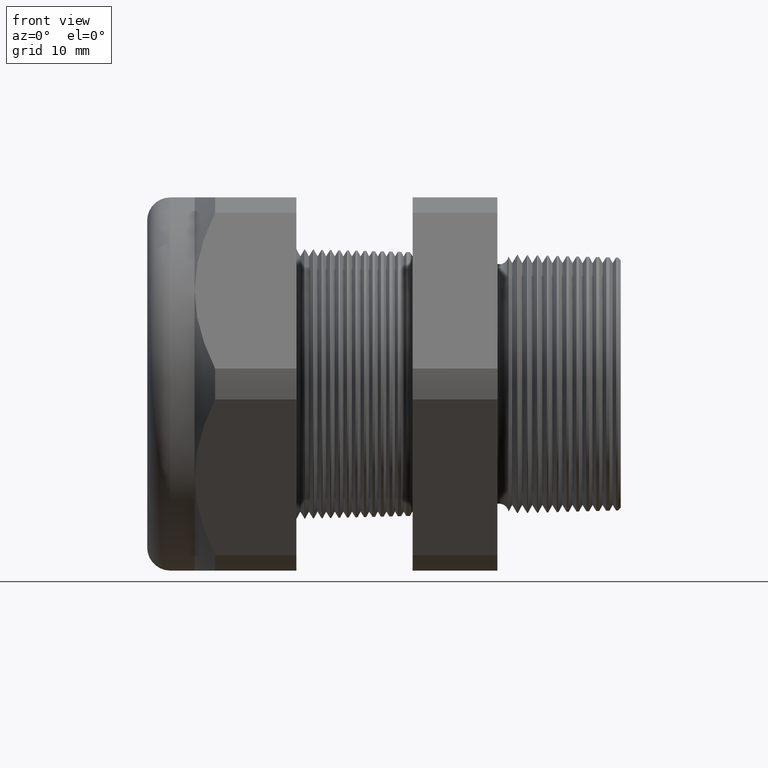
[diagram: clean part render]
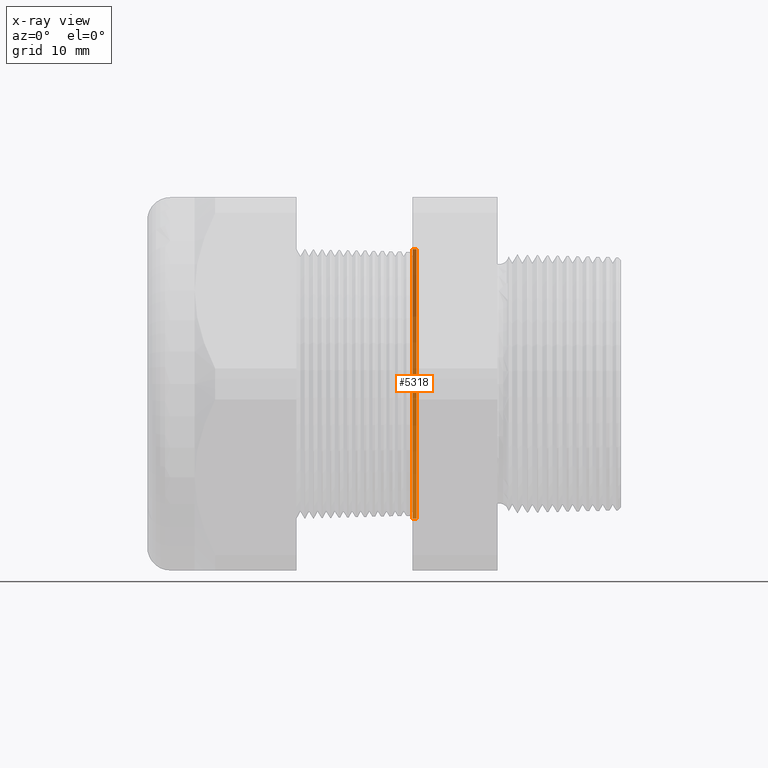
[diagram: x-ray — body ghosted, one internal face saturated and labeled with its STEP entity id]
A machine part, front view, then the same camera in x-ray: the body is ghosted and one INTERNAL B-rep face — a face not visible from any outside direction — is saturated and labeled: STEP entity #5318.
In plain terms, the highlighted conical surface has half-angle 1.5 deg.
Its self-contained STEP definition (entity closure, byte-faithful):
#50 = EDGE_CURVE ( 'NONE', #878, #875, #1019, .T. ) ;
#837 = EDGE_CURVE ( 'NONE', #872, #871, #2523, .T. ) ;
#871 = VERTEX_POINT ( 'NONE', #2570 ) ;
#872 = VERTEX_POINT ( 'NONE', #2569 ) ;
#874 = EDGE_CURVE ( 'NONE', #872, #875, #2568, .T. ) ;
#875 = VERTEX_POINT ( 'NONE', #2564 ) ;
#878 = VERTEX_POINT ( 'NONE', #2621 ) ;
#880 = EDGE_CURVE ( 'NONE', #871, #878, #2620, .T. ) ;
#1015 = DIRECTION ( 'NONE',  ( 0.0000000000000000000, 0.0000000000000000000, 1.000000000000000000 ) ) ;
#1016 = DIRECTION ( 'NONE',  ( -1.000000000000000000, 0.0000000000000000000, 0.0000000000000000000 ) ) ;
#1017 = CARTESIAN_POINT ( 'NONE',  ( -0.6052755905511809600, 0.0000000000000000000, 0.0000000000000000000 ) ) ;
#1018 = AXIS2_PLACEMENT_3D ( 'NONE', #1017, #1016, #1015 ) ;
#1019 = CIRCLE ( 'NONE', #1018, 0.4696061802346682700 ) ;
#2518 = DIRECTION ( 'NONE',  ( 0.0000000000000000000, 0.0000000000000000000, -1.000000000000000000 ) ) ;
#2519 = DIRECTION ( 'NONE',  ( 1.000000000000000000, 0.0000000000000000000, 0.0000000000000000000 ) ) ;
#2520 = CARTESIAN_POINT ( 'NONE',  ( -0.5914573393463203900, 0.0000000000000000000, 0.0000000000000000000 ) ) ;
#2522 = AXIS2_PLACEMENT_3D ( 'NONE', #2520, #2519, #2518 ) ;
#2523 = CIRCLE ( 'NONE', #2522, 0.4692443365923945100 ) ;
#2564 = CARTESIAN_POINT ( 'NONE',  ( -0.6052755905511809600, 5.751017054842014700E-017, -0.4696061802346682100 ) ) ;
#2565 = DIRECTION ( 'NONE',  ( -0.9996573249755573700, 3.205751595667405400E-018, -0.02617694830786618600 ) ) ;
#2566 = VECTOR ( 'NONE', #2565, 39.37007874015748100 ) ;
#2567 = CARTESIAN_POINT ( 'NONE',  ( -0.5914573393463203900, 5.746585748258992000E-017, -0.4692443365923945100 ) ) ;
#2568 = LINE ( 'NONE', #2567, #2566 ) ;
#2569 = CARTESIAN_POINT ( 'NONE',  ( -0.5914573393463203900, 0.0000000000000000000, -0.4692443365923945100 ) ) ;
#2570 = CARTESIAN_POINT ( 'NONE',  ( -0.5914573393463203900, 5.746585748258992000E-017, 0.4692443365923945100 ) ) ;
#2617 = DIRECTION ( 'NONE',  ( -0.9996573249755573700, 0.0000000000000000000, 0.02617694830786618600 ) ) ;
#2618 = VECTOR ( 'NONE', #2617, 39.37007874015748100 ) ;
#2619 = CARTESIAN_POINT ( 'NONE',  ( -0.5914573393463203900, 0.0000000000000000000, 0.4692443365923945100 ) ) ;
#2620 = LINE ( 'NONE', #2619, #2618 ) ;
#2621 = CARTESIAN_POINT ( 'NONE',  ( -0.6052755905511809600, 0.0000000000000000000, 0.4696061802346682100 ) ) ;
#3880 = DIRECTION ( 'NONE',  ( 0.0000000000000000000, 0.0000000000000000000, 1.000000000000000000 ) ) ;
#3881 = DIRECTION ( 'NONE',  ( -1.000000000000000000, 0.0000000000000000000, 0.0000000000000000000 ) ) ;
#3882 = AXIS2_PLACEMENT_3D ( 'NONE', #3889, #3881, #3880 ) ;
#3884 = CONICAL_SURFACE ( 'NONE', #3882, 0.4692443365923945100, 0.02617993877990797800 ) ;
#3885 = FACE_OUTER_BOUND ( 'NONE', #5319, .T. ) ;
#3889 = CARTESIAN_POINT ( 'NONE',  ( -0.5914573393463203900, 0.0000000000000000000, 0.0000000000000000000 ) ) ;
#5318 = ADVANCED_FACE ( 'NONE', ( #3885 ), #3884, .F. ) ;
#5319 = EDGE_LOOP ( 'NONE', ( #5320, #5321, #5322, #5323 ) ) ;
#5320 = ORIENTED_EDGE ( 'NONE', *, *, #874, .F. ) ;
#5321 = ORIENTED_EDGE ( 'NONE', *, *, #837, .T. ) ;
#5322 = ORIENTED_EDGE ( 'NONE', *, *, #880, .T. ) ;
#5323 = ORIENTED_EDGE ( 'NONE', *, *, #50, .T. ) ;